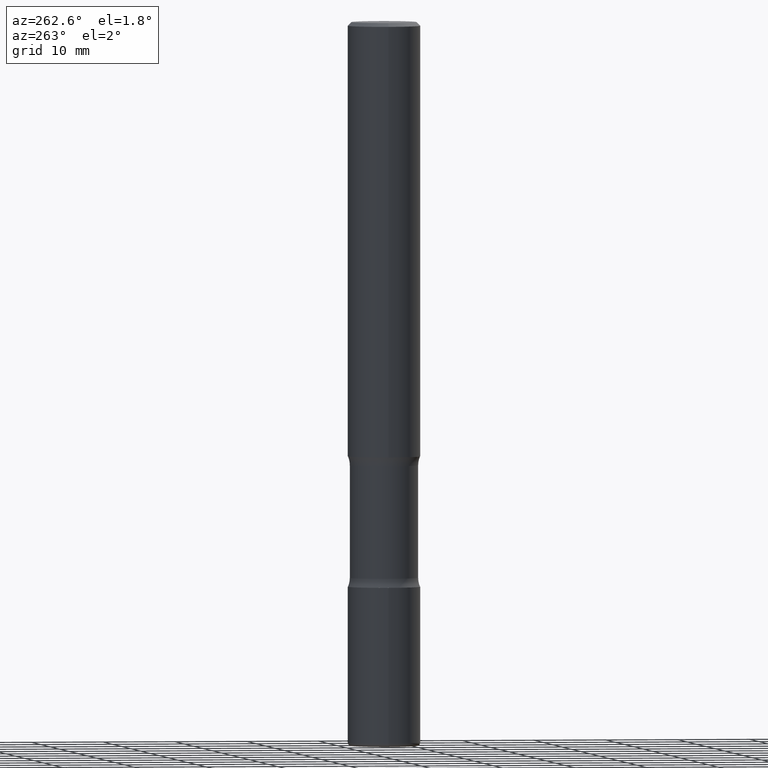
[diagram: clean part render]
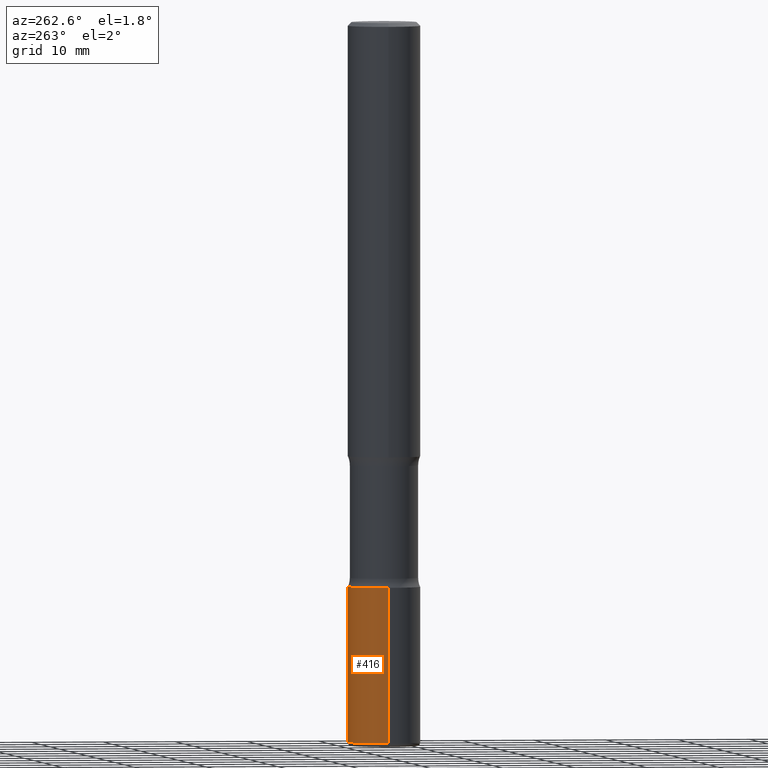
[diagram: same view with one face highlighted and labeled with its STEP entity id]
A machine part, auxiliary view. The second image highlights one B-rep face of the part: STEP entity #416.
In plain terms, the highlighted cylindrical surface (edge-blend (fillet) strip) has radius 5 mm, axis along (-0, 0, 1).
Its self-contained STEP definition (entity closure, byte-faithful):
#8 = ORIENTED_EDGE ( 'NONE', *, *, #522, .F. ) ;
#16 = DIRECTION ( 'NONE',  ( -2.445468806185136597E-29, 3.491481338843145583E-15, 1.000000000000000000 ) ) ;
#25 = LINE ( 'NONE', #550, #339 ) ;
#48 = LINE ( 'NONE', #170, #98 ) ;
#54 = EDGE_CURVE ( 'NONE', #452, #83, #156, .T. ) ;
#83 = VERTEX_POINT ( 'NONE', #320 ) ;
#86 = DIRECTION ( 'NONE',  ( -2.445468806185136597E-29, 3.491481338843145583E-15, 1.000000000000000000 ) ) ;
#98 = VECTOR ( 'NONE', #303, 39.37007874015748143 ) ;
#105 = ORIENTED_EDGE ( 'NONE', *, *, #386, .F. ) ;
#117 = FACE_OUTER_BOUND ( 'NONE', #275, .T. ) ;
#141 = DIRECTION ( 'NONE',  ( -2.445468806185136597E-29, 3.491481338843145583E-15, 1.000000000000000000 ) ) ;
#156 = CIRCLE ( 'NONE', #182, 0.1968500000000001082 ) ;
#160 = DIRECTION ( 'NONE',  ( -2.445468806185136877E-29, 3.491481338843145188E-15, 1.000000000000000000 ) ) ;
#169 = CARTESIAN_POINT ( 'NONE',  ( 0.1968500000000001915, -1.209658624655596058E-14, -3.070900000000000407 ) ) ;
#170 = CARTESIAN_POINT ( 'NONE',  ( -0.1968500000000001360, 1.398703375343758182E-15, -9.682923725166790684E-30 ) ) ;
#182 = AXIS2_PLACEMENT_3D ( 'NONE', #488, #16, #401 ) ;
#195 = CIRCLE ( 'NONE', #255, 0.1968500000000001915 ) ;
#197 = CARTESIAN_POINT ( 'NONE',  ( -0.1968500000000001915, -1.080088157070807781E-14, -3.070900000000000407 ) ) ;
#255 = AXIS2_PLACEMENT_3D ( 'NONE', #350, #141, #270 ) ;
#270 = DIRECTION ( 'NONE',  ( 1.000000000000000000, -6.982962677686272233E-15, 0.000000000000000000 ) ) ;
#275 = EDGE_LOOP ( 'NONE', ( #423, #557, #8, #105 ) ) ;
#287 = CYLINDRICAL_SURFACE ( 'NONE', #518, 0.1968500000000001360 ) ;
#303 = DIRECTION ( 'NONE',  ( -2.445468806185136877E-29, 3.491481338843145188E-15, 1.000000000000000000 ) ) ;
#320 = CARTESIAN_POINT ( 'NONE',  ( -0.1968500000000000805, -1.227847647330649996E-14, -3.917300000000000448 ) ) ;
#334 = CARTESIAN_POINT ( 'NONE',  ( 0.1968500000000000805, -1.505177605175279857E-14, -3.917300000000000448 ) ) ;
#335 = VERTEX_POINT ( 'NONE', #197 ) ;
#339 = VECTOR ( 'NONE', #160, 39.37007874015748143 ) ;
#350 = CARTESIAN_POINT ( 'NONE',  ( 7.509790156913936305E-29, -1.072199004345341739E-14, -3.070900000000000407 ) ) ;
#386 = EDGE_CURVE ( 'NONE', #452, #426, #25, .T. ) ;
#401 = DIRECTION ( 'NONE',  ( 1.000000000000000000, -6.982962677686265133E-15, 0.000000000000000000 ) ) ;
#416 = ADVANCED_FACE ( 'NONE', ( #117 ), #287, .T. ) ;
#423 = ORIENTED_EDGE ( 'NONE', *, *, #54, .T. ) ;
#426 = VERTEX_POINT ( 'NONE', #169 ) ;
#452 = VERTEX_POINT ( 'NONE', #334 ) ;
#465 = CARTESIAN_POINT ( 'NONE',  ( 0.000000000000000000, 0.000000000000000000, 0.000000000000000000 ) ) ;
#488 = CARTESIAN_POINT ( 'NONE',  ( 9.579634954469036932E-29, -1.367717984865025539E-14, -3.917300000000000448 ) ) ;
#513 = EDGE_CURVE ( 'NONE', #83, #335, #48, .T. ) ;
#516 = DIRECTION ( 'NONE',  ( 1.000000000000000000, -6.982962677686266711E-15, 4.876176775795935793E-29 ) ) ;
#518 = AXIS2_PLACEMENT_3D ( 'NONE', #465, #86, #516 ) ;
#522 = EDGE_CURVE ( 'NONE', #426, #335, #195, .T. ) ;
#550 = CARTESIAN_POINT ( 'NONE',  ( 0.1968500000000001360, -1.374596203102542594E-15, 9.598753983154306463E-30 ) ) ;
#557 = ORIENTED_EDGE ( 'NONE', *, *, #513, .T. ) ;